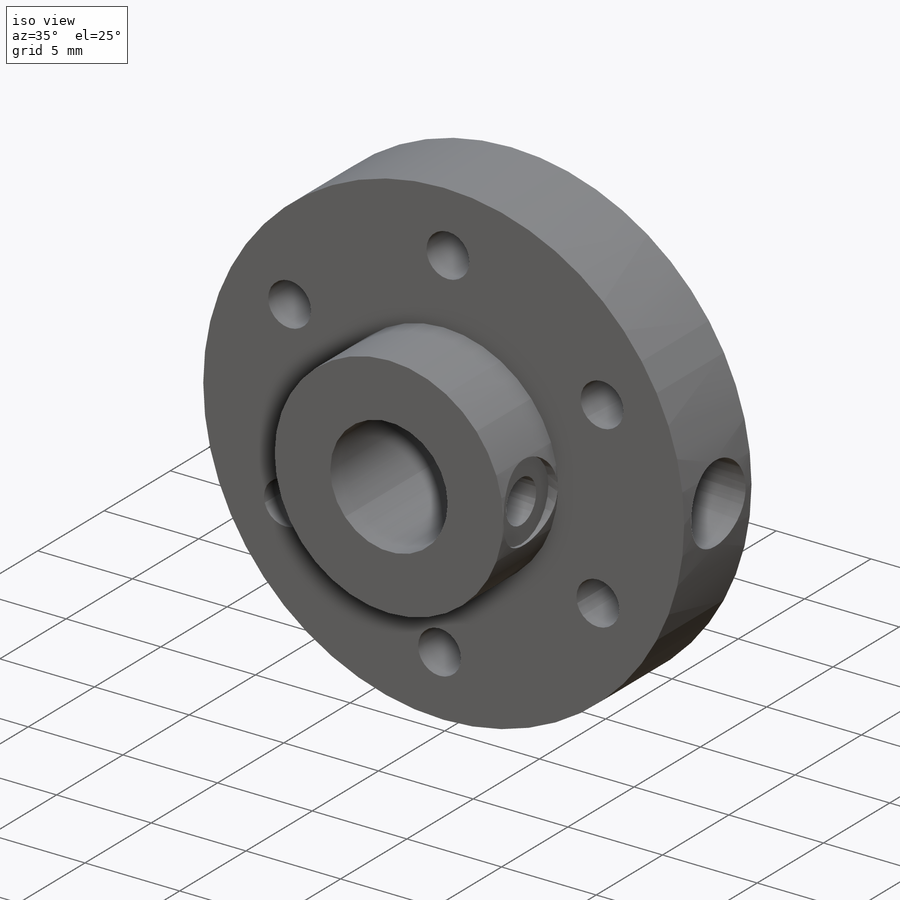
[diagram: iso view]
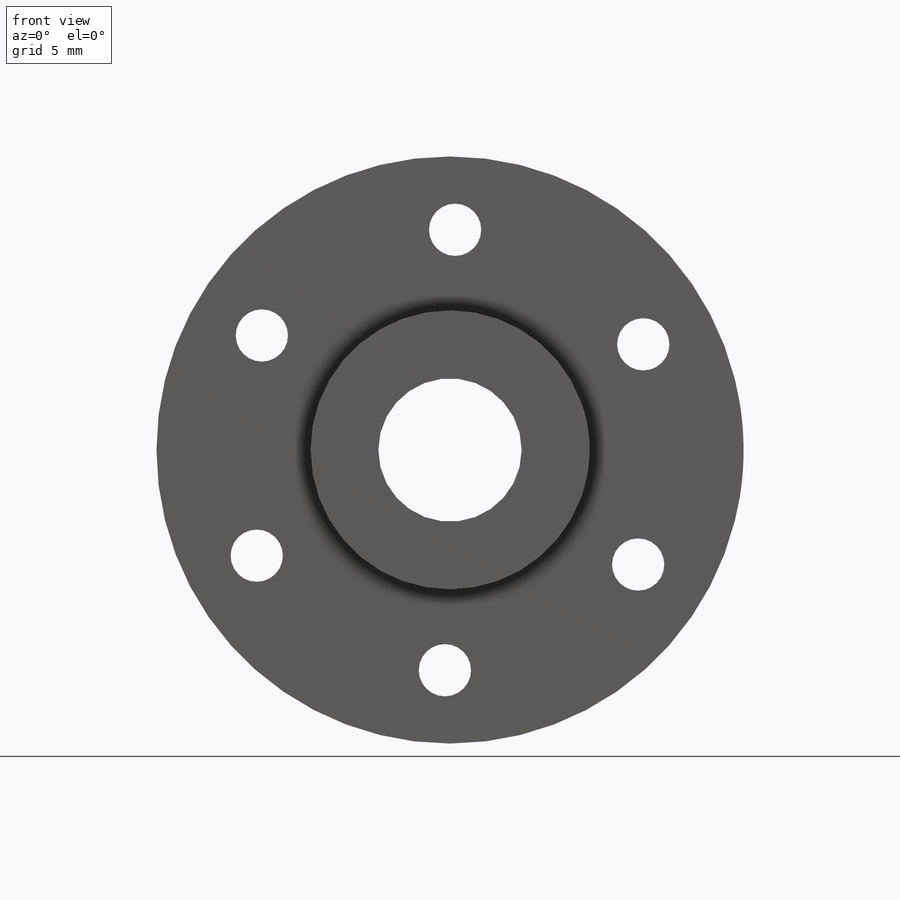
[diagram: front view]
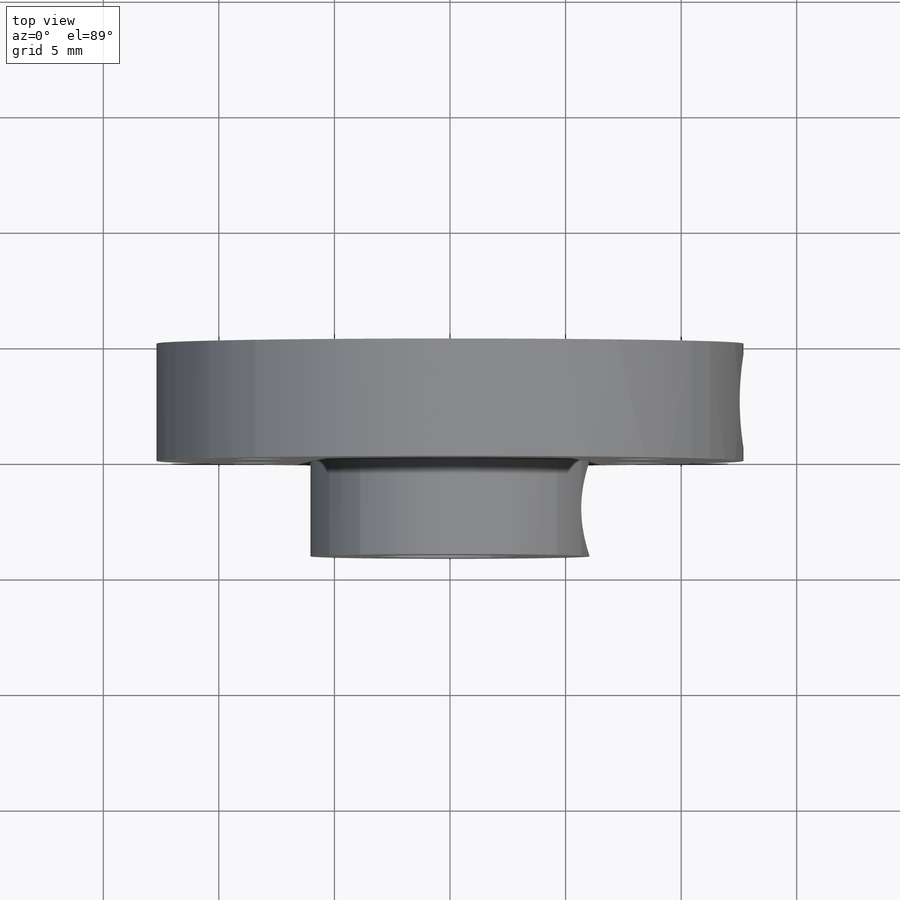
[diagram: top view]
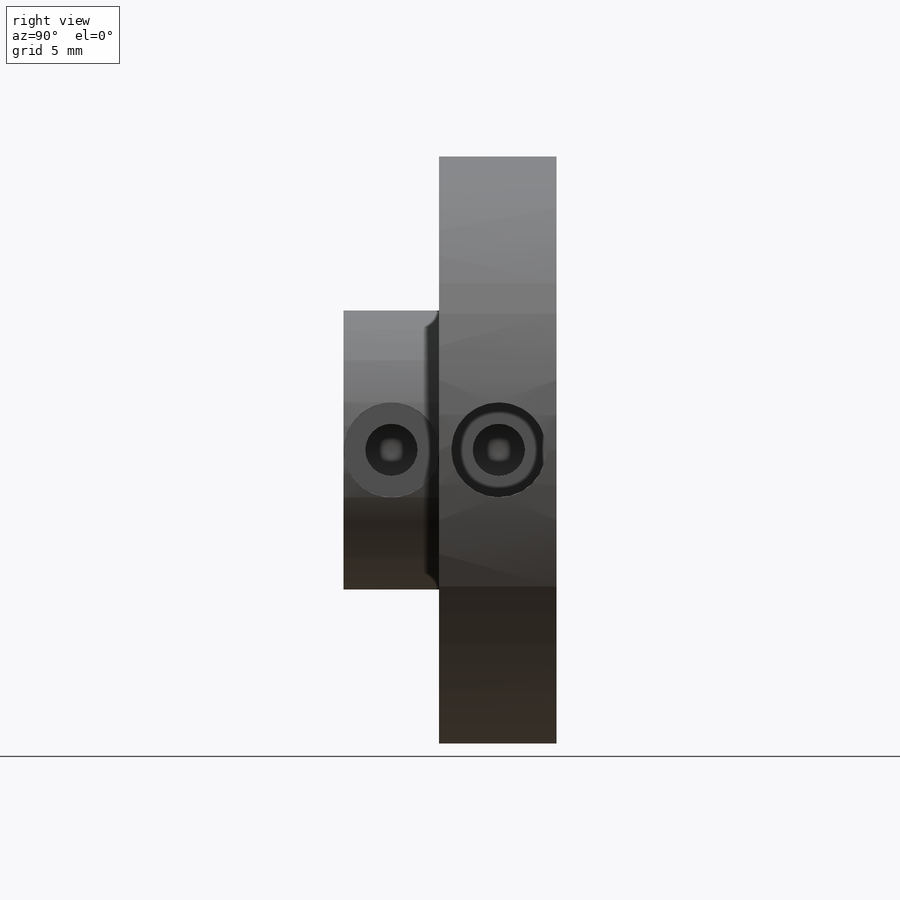
[diagram: right view]
SOLIDWORKS PART (.sldprt)
format: sldprt  version: not decoded by parser v0  size: 345,088 bytes
history: native  units: mm
features: sketch x17, cut_extrude x3, hole x3, thread x3, extrude x2, plane x2, material x1 (+12 scaffold rows collapsed)
feature tree (43):
  scaffold x12  (default folders/planes/origin — collapsed)
  material  "Material <not specified>"
  sketch  "Sketch1"  dims[D1=~23.296168mm]
  extrude  "Boss-Extrude1"  Depth=5.08mm
  sketch  "Sketch2"  dims[D1=~5.109592mm]
  extrude  "Boss-Extrude2"  Depth=4.13mm
  sketch  "Sketch9"  dims[D1=9.53mm]
  sketch  "Sketch3"  dims[D1=3.0mm]
  cut_extrude  "Cut-Extrude1"  [1 undecoded]
  hole  "#4-40 Tapped Hole2"  Diameter=2.2606mm Depth=7.6mm
  sketch  "Sketch11"
  sketch  "Sketch10"  dims[hole-wizard template sketch: 50 standard entries collapsed; hole parameters above]
  thread  "Hole Thread2"  Diameter=5.08mm  [1 undecoded]
  sketch  "Sketch12"  dims[D1=6.0 D3=10.0mm D2=1.0 D4=10.0mm]
  sketch  "Sketch13"
  sketch  "Sketch14"
  plane  "Plane1"
  plane  "Plane2"
  sketch  "Sketch16"  dims[D1=2.0mm]
  cut_extrude  "Cut-Extrude2"  Depth=0.5mm
  sketch  "Sketch20"  dims[D1=0.0mm D2=0.0mm]
  hole  "#4-40 Tapped Hole3"  Diameter=2.2606mm Depth=2.435mm
  sketch  "Sketch22"
  sketch  "Sketch23"  dims[hole-wizard template sketch: 60 standard entries collapsed; hole parameters kept: c18.Thru Tap Drill Depth=2.435mm]
  thread  "Hole Thread3"  Diameter=2.8448mm  [1 undecoded]
  sketch  "Sketch24"  dims[D1=~2.016545mm]
  cut_extrude  "Cut-Extrude3"  Depth=7.1mm
  sketch  "Sketch25"
  hole  "#4-40 Tapped Hole4"  Diameter=2.2606mm Depth=2.5mm
  sketch  "Sketch27"
  sketch  "Sketch28"  dims[hole-wizard template sketch: 60 standard entries collapsed; hole parameters kept: c18.Thru Tap Drill Depth=2.5mm]
  thread  "Hole Thread4"  Diameter=2.8448mm  [1 undecoded]
decode coverage: 21 of 28 modeling features carry decoded parameters
note: ~ marks probable driven/reference dimensions
note: 4 parameter values undecoded
note: suppression state not decoded; provenance and decode notes live in map.json
